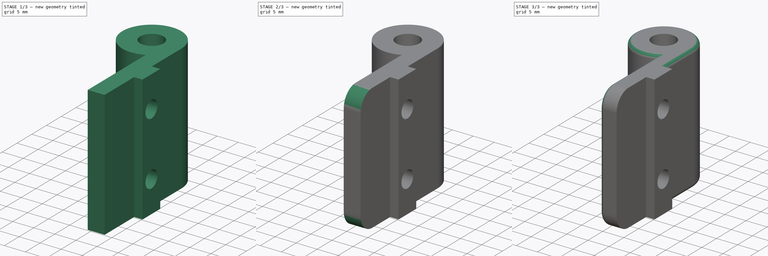
[diagram: build sequence overview — one tinted view per stage of 3, left to right]
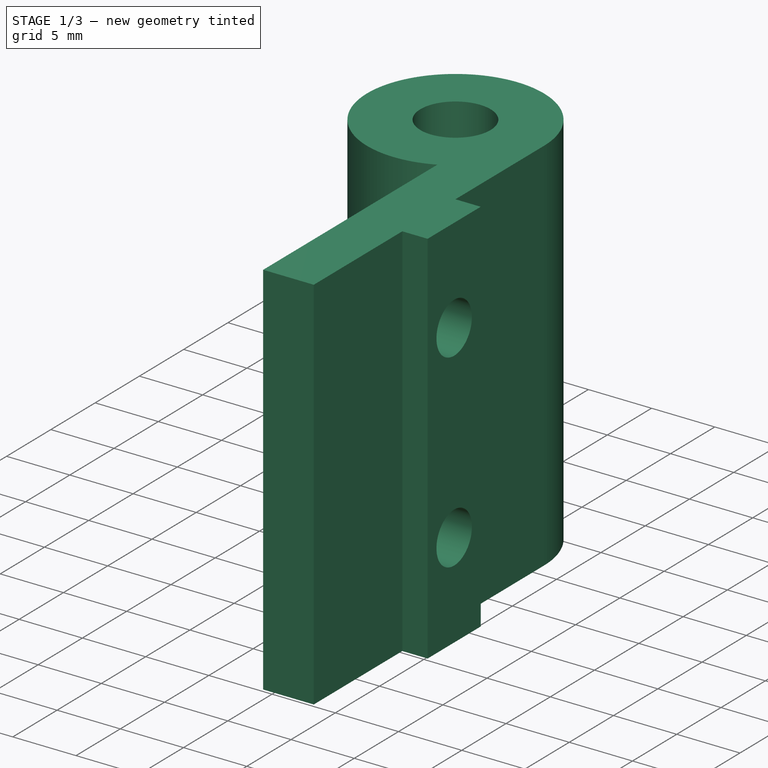
[diagram: stage 1 of 3 — iso view after this stage's code; geometry added in this stage tinted green]
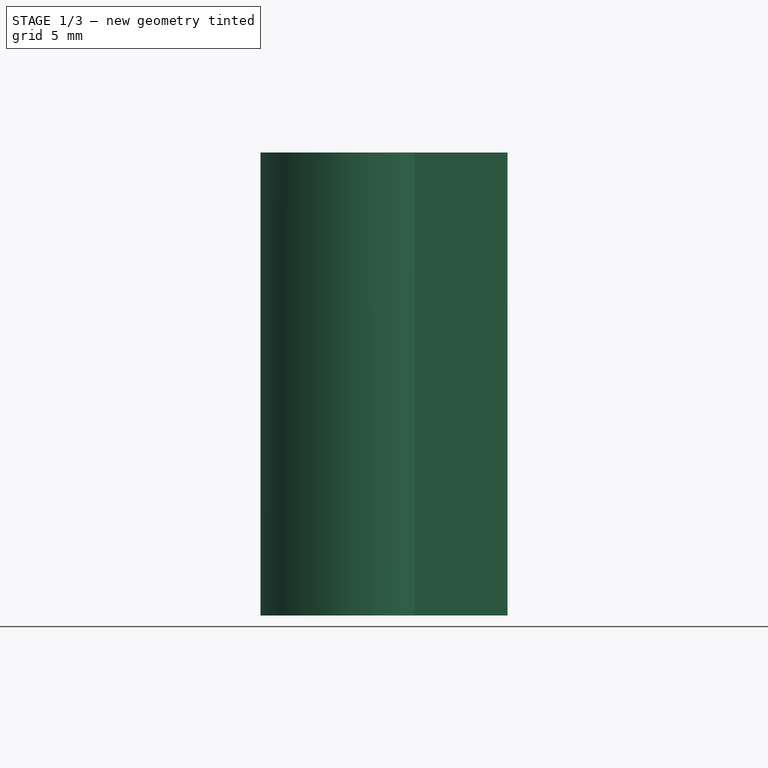
[diagram: stage 1 of 3 — front view after this stage's code; geometry added in this stage tinted green]
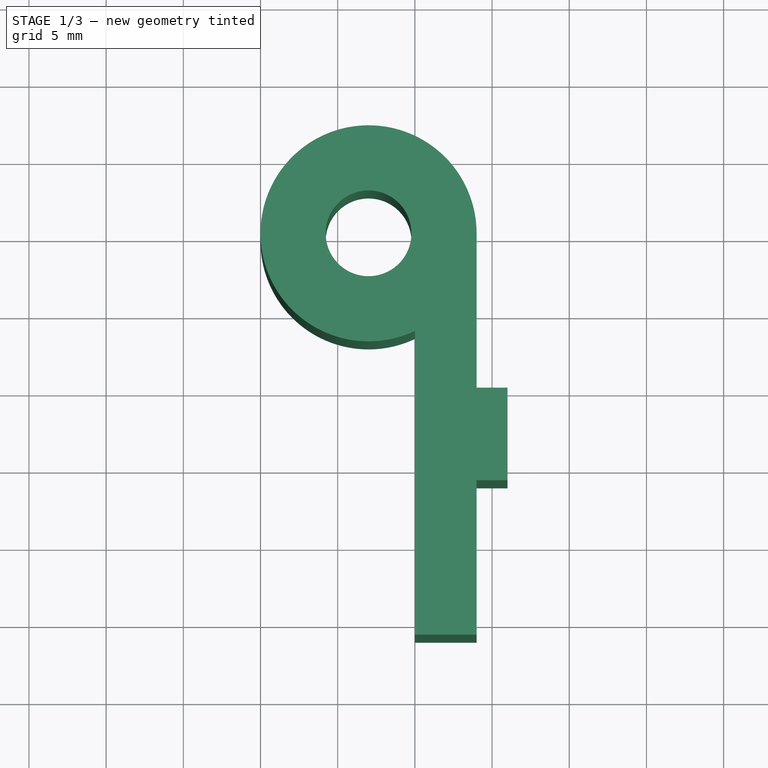
[diagram: stage 1 of 3 — top view after this stage's code; geometry added in this stage tinted green]
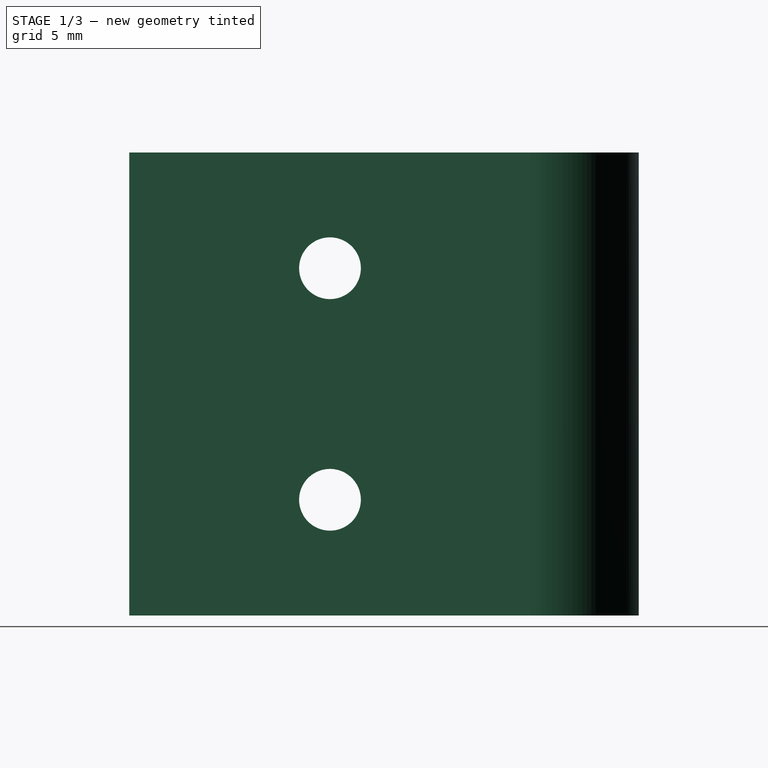
[diagram: stage 1 of 3 — right view after this stage's code; geometry added in this stage tinted green]
FCSTD DOCUMENT  (FreeCAD 0.14R2935 (Git))
Label: myhinge5c
License: CC-BY 3.0
LicenseURL: http://creativecommons.org/licenses/by/3.0/
objects: PartDesign::Fillet×5, Sketcher::SketchObject×3, PartDesign::Pad×2, PartDesign::Pocket×1
note: 14 computed .brp shape members not serialized (recipe doc carries the construction recipe); baked Part::Feature solids carry a one-line shape summary decoded from their .brp

FEATURE [Sketcher::SketchObject] Sketch
  sketch-geometry (5):
    g0: LineSegment StartX=14 StartY=0 StartZ=0 EndX=14 EndY=-26 EndZ=0
    g1: LineSegment StartX=14 StartY=-26 StartZ=0 EndX=10 EndY=-26 EndZ=0
    g2: LineSegment StartX=10 StartY=-26 StartZ=0 EndX=10 EndY=-6.32456 EndZ=0
    g3: ArcOfCircle CenterX=7 CenterY=0 CenterZ=0 NormalX=0 NormalY=0 NormalZ=1 Radius=7 StartAngle=0 EndAngle=5.1553
    g4: Circle CenterX=7 CenterY=0 CenterZ=0 NormalX=0 NormalY=0 NormalZ=1 Radius=2.77724
  constraints (15):
    c: Coincident(g0,g1)
    c: Coincident(g1,g2)
    c: Horizontal(g1)
    c: Vertical(g0)
    c: Vertical(g2)
    c: DistanceY(g-1,g1) = -26
    c: DistanceX(g-1,g1) = 10
    c: DistanceY(g-1,g3) = 0
    c: DistanceX(g-1,g3) = 7
    c: Radius(g3) = 7
    c: Coincident(g3,g0)
    c: Coincident(g3,g2)
    c: Coincident(g4,g3)
    c: Radius(g4) = 2.77724
    c: DistanceY(g-1,g0) = 0
FEATURE [PartDesign::Pad] Pad
  Length = 30
  Length2 = 100
  Sketch = -> Sketch
  Type = 0
FEATURE [Sketcher::SketchObject] Sketch001
  Placement = pos=(14,0,0) rot=(0.57735,0.57735,0.57735;2.0944rad)
  Support = -> Pad [Face1]
  sketch-geometry (4):
    g0: LineSegment StartX=-16 StartY=30 StartZ=0 EndX=-10 EndY=30 EndZ=0
    g1: LineSegment StartX=-10 StartY=30 StartZ=0 EndX=-10 EndY=0 EndZ=0
    g2: LineSegment StartX=-10 StartY=0 StartZ=0 EndX=-16 EndY=0 EndZ=0
    g3: LineSegment StartX=-16 StartY=0 StartZ=0 EndX=-16 EndY=30 EndZ=0
  constraints (12):
    c: Coincident(g0,g1)
    c: Coincident(g1,g2)
    c: Coincident(g2,g3)
    c: Coincident(g3,g0)
    c: Horizontal(g0)
    c: Horizontal(g2)
    c: Vertical(g1)
    c: Vertical(g3)
    c: DistanceY(g1) = -30
    c: DistanceX(g0) = 6
    c: DistanceX(g-1,g1) = -10
    c: DistanceY(g-1,g1) = 0
FEATURE [PartDesign::Pad] Pad001
  Length = 2
  Length2 = 100
  Sketch = -> Sketch001
  Type = 0
FEATURE [Sketcher::SketchObject] Sketch002
  Placement = pos=(16,0,0) rot=(0.57735,0.57735,0.57735;2.0944rad)
  Support = -> Pad001 [Face12]
  sketch-geometry (2):
    g0: Circle CenterX=-13 CenterY=22.5 CenterZ=0 NormalX=0 NormalY=0 NormalZ=1 Radius=2
    g1: Circle CenterX=-13 CenterY=7.5 CenterZ=0 NormalX=0 NormalY=0 NormalZ=1 Radius=2
  constraints (6):
    c: DistanceX(g-1,g0) = -13
    c: DistanceY(g-1,g0) = 22.5
    c: DistanceX(g-1,g1) = -13
    c: DistanceY(g-1,g1) = 7.5
    c: Radius(g1) = 2
    c: Radius(g0) = 2
FEATURE [PartDesign::Pocket] Pocket
  Length = 6
  Sketch = -> Sketch002
  Type = 0
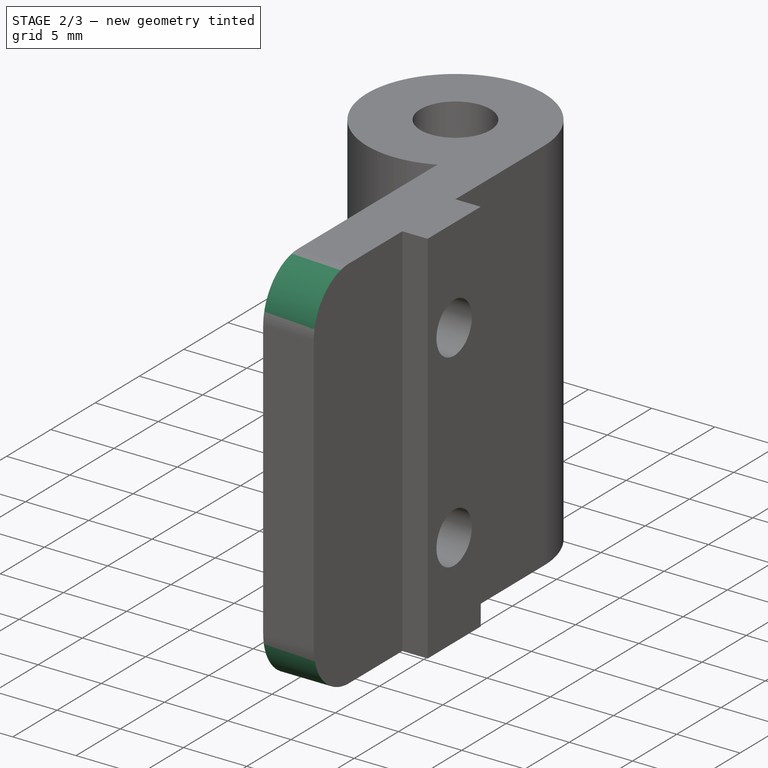
[diagram: stage 2 of 3 — iso view after this stage's code; geometry added in this stage tinted green]
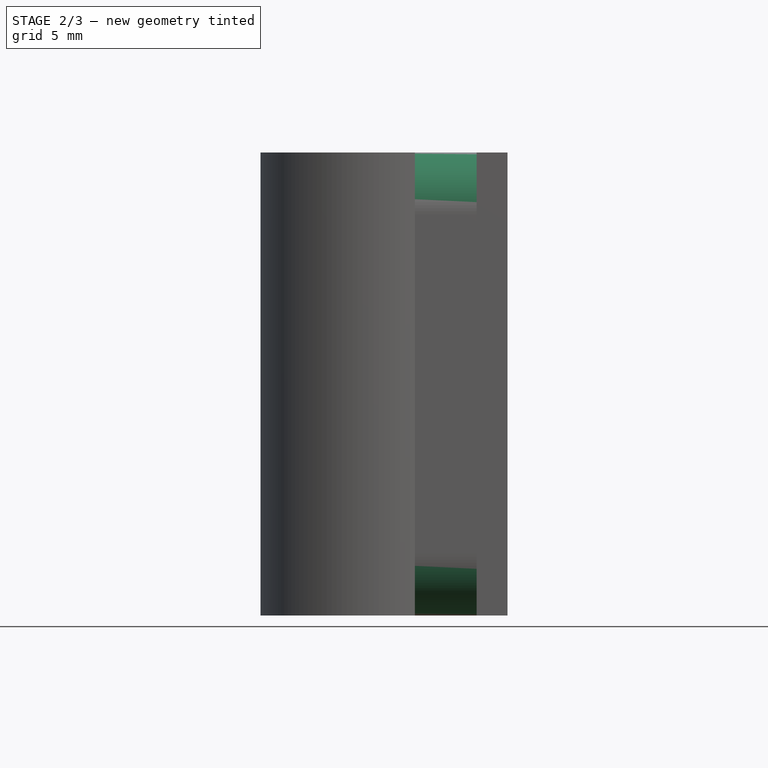
[diagram: stage 2 of 3 — front view after this stage's code; geometry added in this stage tinted green]
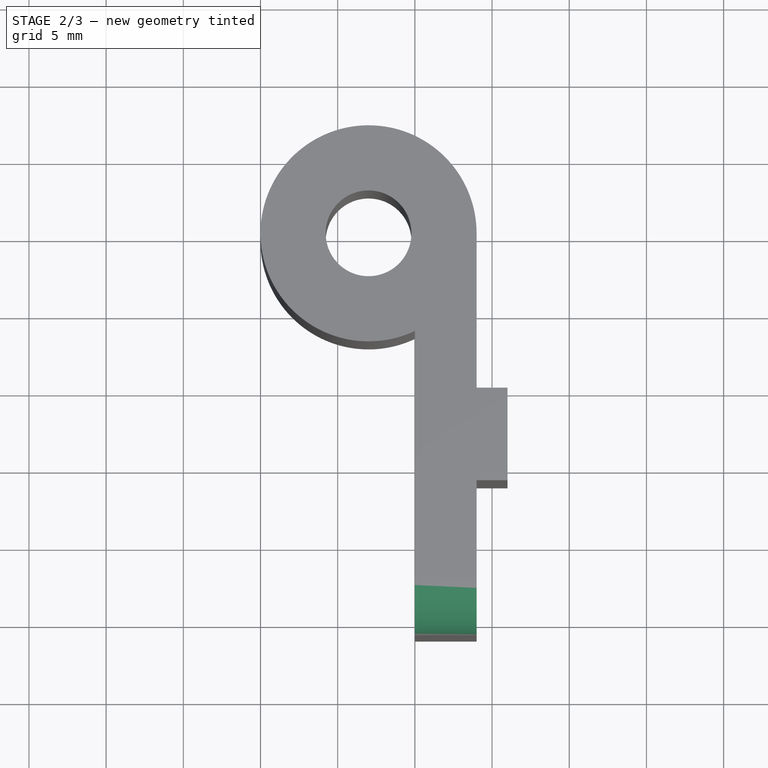
[diagram: stage 2 of 3 — top view after this stage's code; geometry added in this stage tinted green]
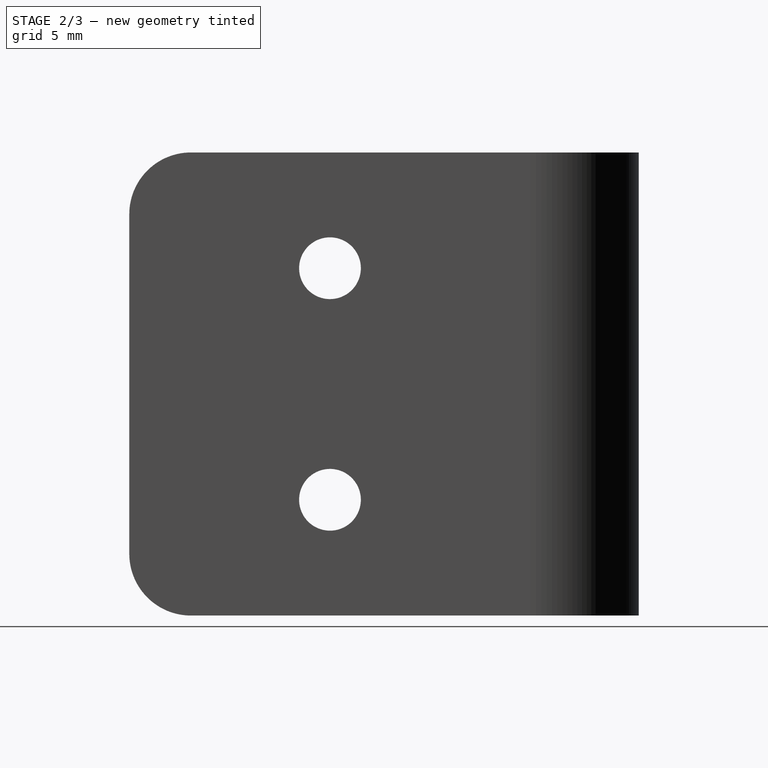
[diagram: stage 2 of 3 — right view after this stage's code; geometry added in this stage tinted green]
FEATURE [PartDesign::Fillet] Fillet
  Base = -> Pocket [Edge15]
  Radius = 4
FEATURE [PartDesign::Fillet] Fillet001
  Base = -> Fillet [Edge10]
  Radius = 4
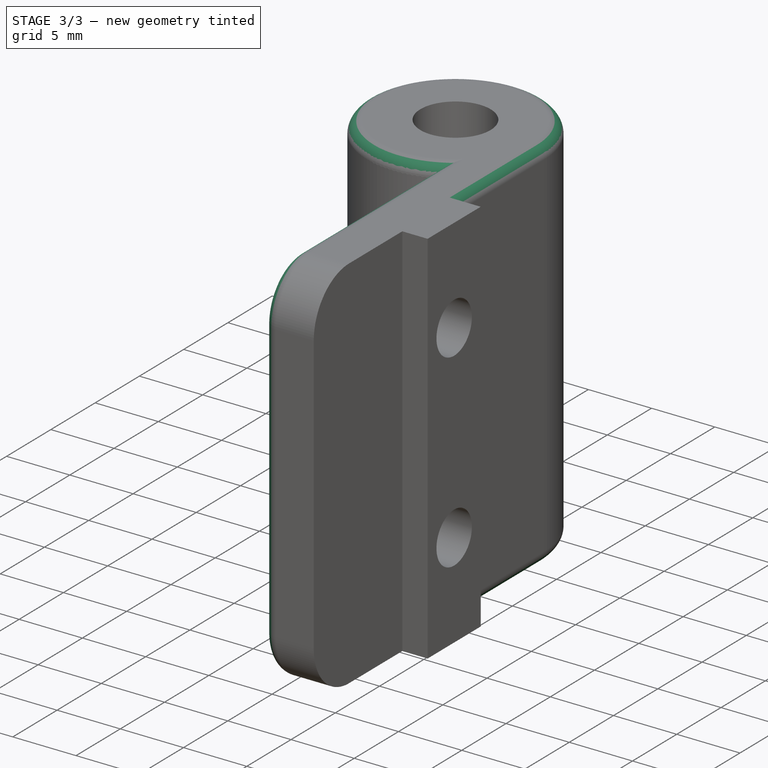
[diagram: stage 3 of 3 — iso view after this stage's code; geometry added in this stage tinted green]
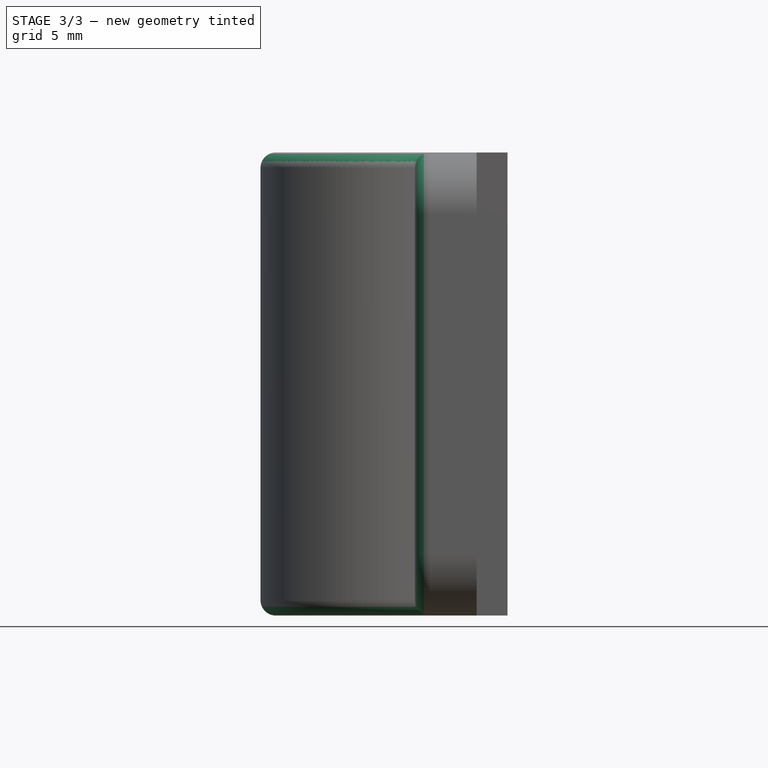
[diagram: stage 3 of 3 — front view after this stage's code; geometry added in this stage tinted green]
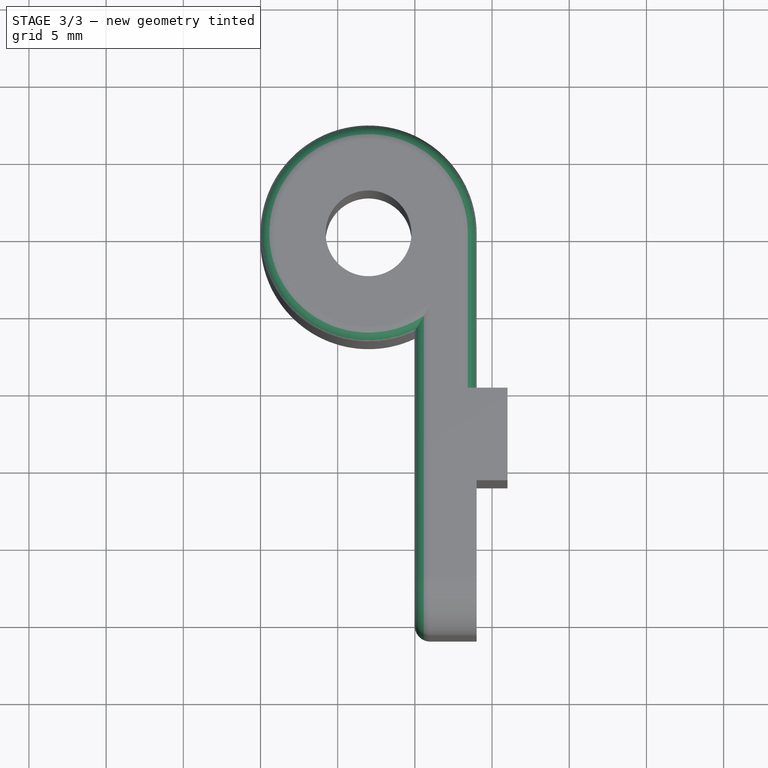
[diagram: stage 3 of 3 — top view after this stage's code; geometry added in this stage tinted green]
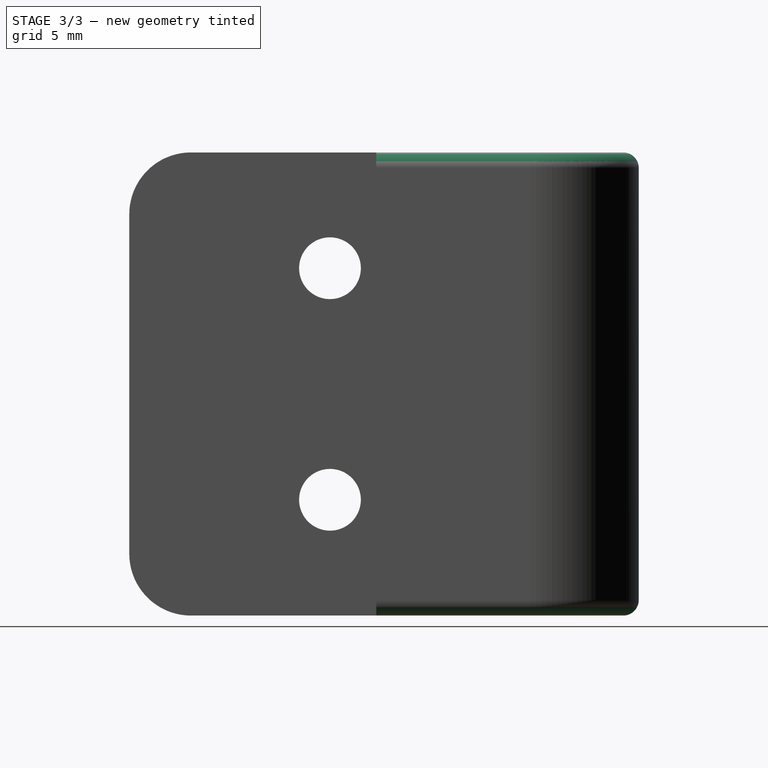
[diagram: stage 3 of 3 — right view after this stage's code; geometry added in this stage tinted green]
FEATURE [PartDesign::Fillet] Fillet002
  Base = -> Fillet001 [Edge1]
  Radius = 1
FEATURE [PartDesign::Fillet] Fillet003
  Base = -> Fillet002 [Edge14]
  Radius = 1
FEATURE [PartDesign::Fillet] Fillet004
  Base = -> Fillet003 [Edge3]
  Radius = 1
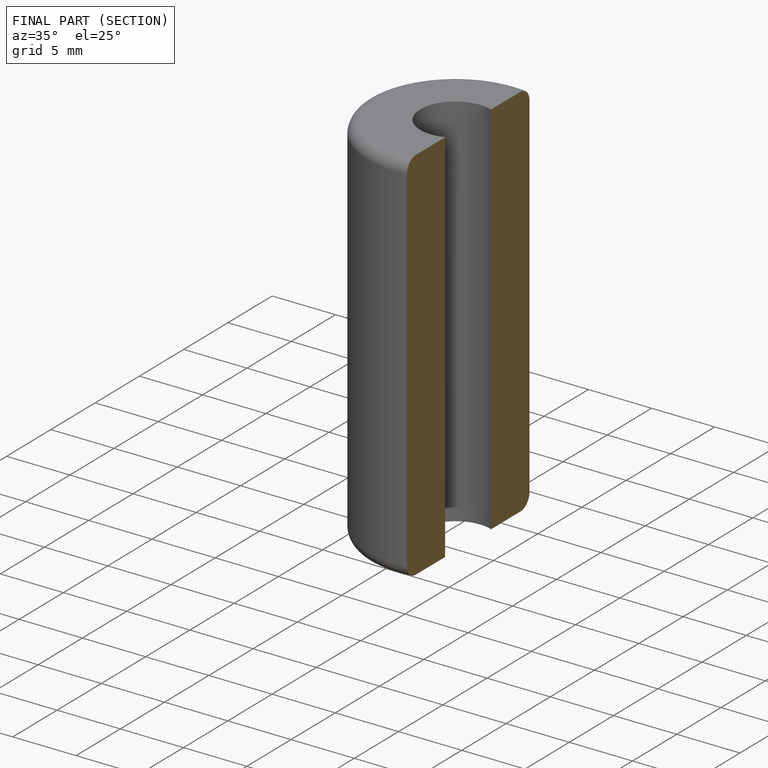
[diagram: finished part — half-section view (interior)]
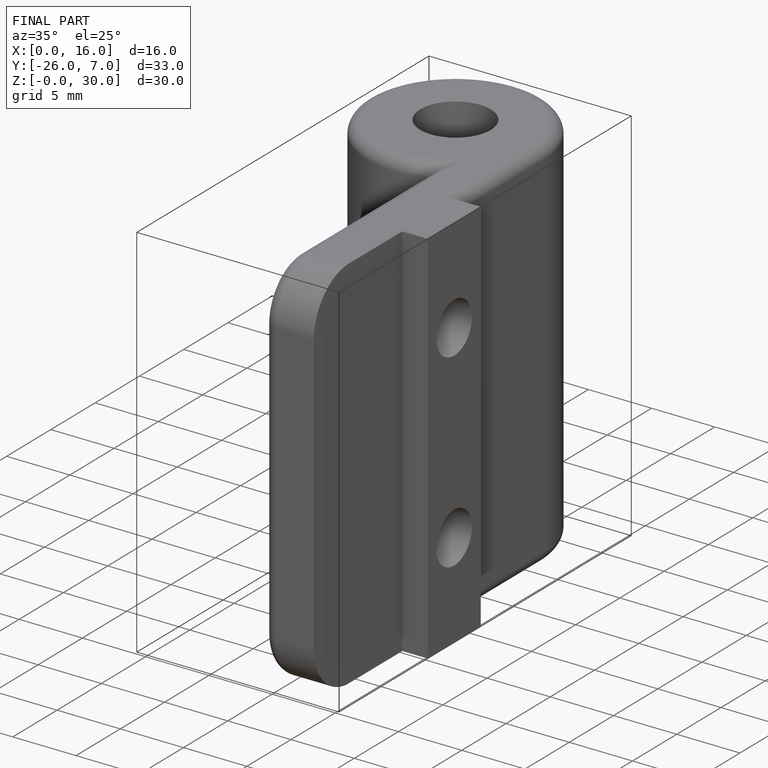
[diagram: finished part — iso view with bounding-box wireframe]
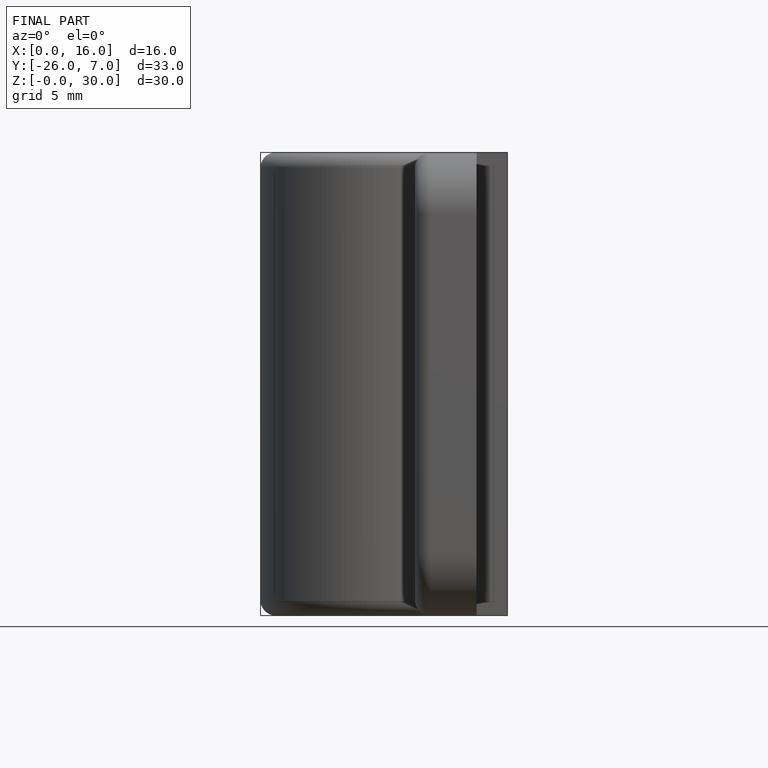
[diagram: finished part — front view with bounding-box wireframe]
